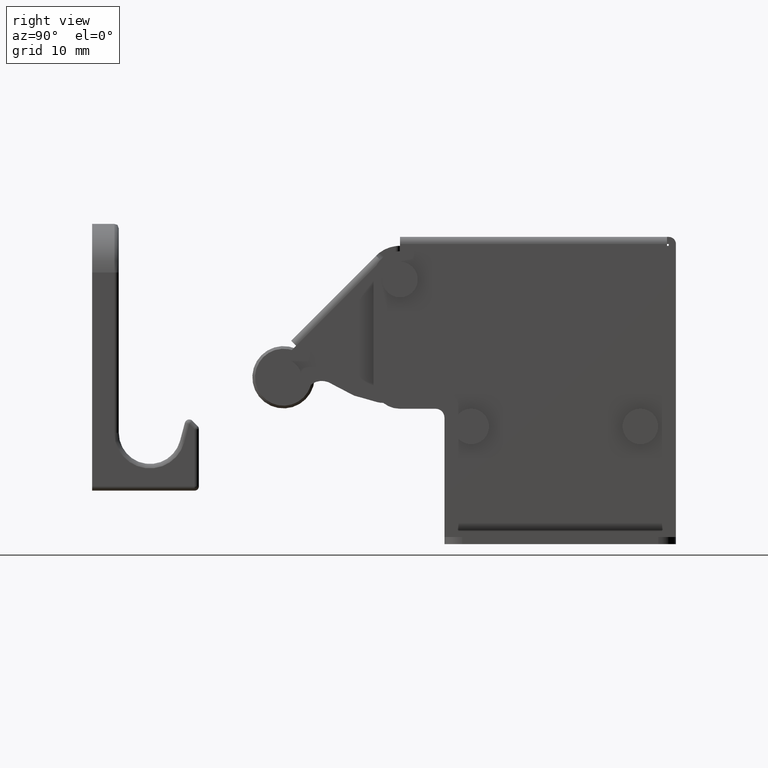
[diagram: clean part render]
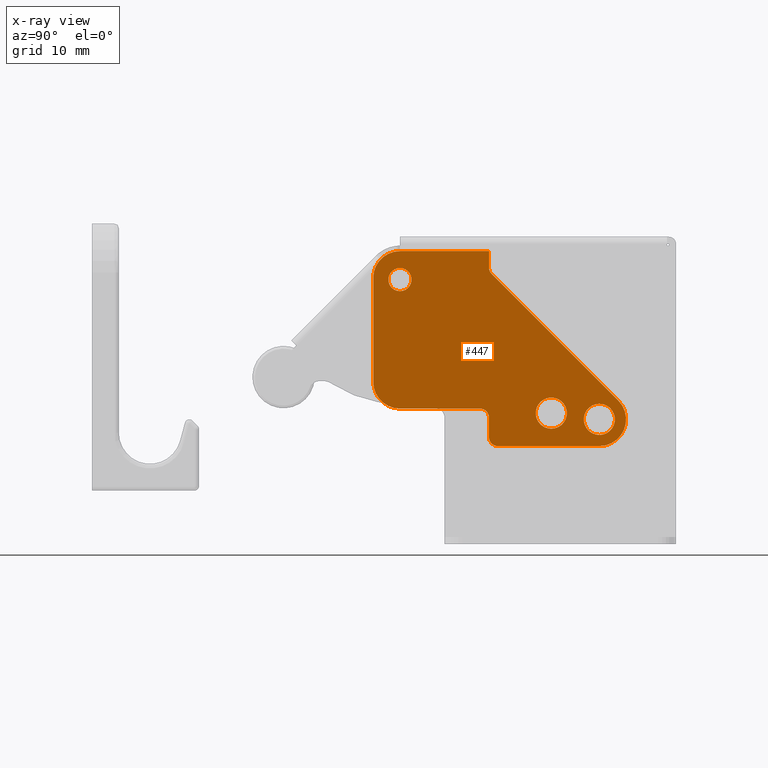
[diagram: x-ray — body ghosted, one internal face saturated and labeled with its STEP entity id]
A machine part, right view, then the same camera in x-ray: the body is ghosted and one INTERNAL B-rep face — a face not visible from any outside direction — is saturated and labeled: STEP entity #447.
In plain terms, the highlighted planar face has unit normal (-1, 0, 0).
Its self-contained STEP definition (entity closure, byte-faithful):
#447=ADVANCED_FACE('',(#2794,#2795,#2796,#2797),#2793,.F.);
#2793=PLANE('',#4721);
#2794=FACE_OUTER_BOUND('',#4722,.T.);
#2795=FACE_BOUND('',#4723,.T.);
#2796=FACE_BOUND('',#4724,.T.);
#2797=FACE_BOUND('',#4725,.T.);
#4718=CARTESIAN_POINT('',(6.65000000000E+00,-5.89387412813E+00,-2.08900000000E+01));
#4719=DIRECTION('',(-1.00000000000E+00,0.00000000000E+00,0.00000000000E+00));
#4720=DIRECTION('',(0.00000000000E+00,0.00000000000E+00,1.00000000000E+00));
#4721=AXIS2_PLACEMENT_3D('',#4718,#4719,#4720);
#4722=EDGE_LOOP('',(#6172,#6173,#6174,#6175,#6176,#6177,#6178,#6179,#6180,#6181,#6182,#6183,#6184));
#4723=EDGE_LOOP('',(#6185,#6186));
#4724=EDGE_LOOP('',(#6187,#6188));
#4725=EDGE_LOOP('',(#6189,#6190));
#6172=ORIENTED_EDGE('',*,*,#7060,.F.);
#6173=ORIENTED_EDGE('',*,*,#7061,.T.);
#6174=ORIENTED_EDGE('',*,*,#7062,.F.);
#6175=ORIENTED_EDGE('',*,*,#7063,.T.);
#6176=ORIENTED_EDGE('',*,*,#7064,.F.);
#6177=ORIENTED_EDGE('',*,*,#7065,.T.);
#6178=ORIENTED_EDGE('',*,*,#7066,.F.);
#6179=ORIENTED_EDGE('',*,*,#7067,.T.);
#6180=ORIENTED_EDGE('',*,*,#7068,.T.);
#6181=ORIENTED_EDGE('',*,*,#7069,.F.);
#6182=ORIENTED_EDGE('',*,*,#7070,.T.);
#6183=ORIENTED_EDGE('',*,*,#7071,.F.);
#6184=ORIENTED_EDGE('',*,*,#7072,.T.);
#6185=ORIENTED_EDGE('',*,*,#7073,.T.);
#6186=ORIENTED_EDGE('',*,*,#7074,.T.);
#6187=ORIENTED_EDGE('',*,*,#7075,.T.);
#6188=ORIENTED_EDGE('',*,*,#7076,.T.);
#6189=ORIENTED_EDGE('',*,*,#7077,.T.);
#6190=ORIENTED_EDGE('',*,*,#7078,.T.);
#7060=EDGE_CURVE('',#10918,#10919,#10920,.T.);
#7061=EDGE_CURVE('',#10918,#10926,#10927,.T.);
#7062=EDGE_CURVE('',#10933,#10926,#10934,.T.);
#7063=EDGE_CURVE('',#10933,#10940,#10941,.T.);
#7064=EDGE_CURVE('',#10947,#10940,#10948,.T.);
#7065=EDGE_CURVE('',#10947,#10954,#10955,.T.);
#7066=EDGE_CURVE('',#10961,#10954,#10962,.T.);
#7067=EDGE_CURVE('',#10961,#10968,#10969,.T.);
#7068=EDGE_CURVE('',#10968,#10975,#10976,.T.);
#7069=EDGE_CURVE('',#10982,#10975,#10983,.T.);
#7070=EDGE_CURVE('',#10982,#10989,#10990,.T.);
#7071=EDGE_CURVE('',#10996,#10989,#10997,.T.);
#7072=EDGE_CURVE('',#10996,#10919,#11003,.T.);
#7073=EDGE_CURVE('',#11009,#11010,#11011,.T.);
#7074=EDGE_CURVE('',#11010,#11009,#11017,.T.);
#7075=EDGE_CURVE('',#11023,#11024,#11025,.T.);
#7076=EDGE_CURVE('',#11024,#11023,#11031,.T.);
#7077=EDGE_CURVE('',#11037,#11038,#11039,.T.);
#7078=EDGE_CURVE('',#11038,#11037,#11045,.T.);
#10918=VERTEX_POINT('',#14249);
#10919=VERTEX_POINT('',#14250);
#10920=LINE('',#14251,#14252);
#10926=VERTEX_POINT('',#14254);
#10927=CIRCLE('',#14258,1.00000000000E+00);
#10933=VERTEX_POINT('',#14259);
#10934=LINE('',#14260,#14261);
#10940=VERTEX_POINT('',#14263);
#10941=CIRCLE('',#14267,3.00000000000E+00);
#10947=VERTEX_POINT('',#14268);
#10948=LINE('',#14269,#14270);
#10954=VERTEX_POINT('',#14272);
#10955=CIRCLE('',#14276,1.00000000000E+00);
#10961=VERTEX_POINT('',#14277);
#10962=LINE('',#14278,#14279);
#10968=VERTEX_POINT('',#14281);
#10969=LINE('',#14282,#14283);
#10975=VERTEX_POINT('',#14285);
#10976=CIRCLE('',#14289,3.00000000000E+00);
#10982=VERTEX_POINT('',#14290);
#10983=LINE('',#14291,#14292);
#10989=VERTEX_POINT('',#14294);
#10990=CIRCLE('',#14298,3.00000000000E+00);
#10996=VERTEX_POINT('',#14299);
#10997=LINE('',#14300,#14301);
#11003=CIRCLE('',#14306,1.00000000000E+00);
#11009=VERTEX_POINT('',#14307);
#11010=VERTEX_POINT('',#14308);
#11011=CIRCLE('',#14312,1.74999999999E+00);
#11017=CIRCLE('',#14316,1.74999999999E+00);
#11023=VERTEX_POINT('',#14317);
#11024=VERTEX_POINT('',#14318);
#11025=CIRCLE('',#14322,1.30000000000E+00);
#11031=CIRCLE('',#14326,1.30000000000E+00);
#11037=VERTEX_POINT('',#14327);
#11038=VERTEX_POINT('',#14328);
#11039=CIRCLE('',#14332,1.74999999999E+00);
#11045=CIRCLE('',#14336,1.74999999999E+00);
#14249=CARTESIAN_POINT('',(6.65000000000E+00,1.00000000000E+01,-1.77000000000E+01));
#14250=CARTESIAN_POINT('',(6.65000000000E+00,1.00000000000E+01,-1.55000000000E+01));
#14251=CARTESIAN_POINT('',(6.65000000000E+00,1.00000000000E+01,-1.77000000000E+01));
#14252=VECTOR('',#14253,2.20000000000E+00);
#14253=DIRECTION('',(0.00000000000E+00,4.52163559120E-14,1.00000000000E+00));
#14254=CARTESIAN_POINT('',(6.65000000000E+00,1.10000000000E+01,-1.87000000000E+01));
#14255=CARTESIAN_POINT('',(6.65000000000E+00,1.10000000000E+01,-1.77000000000E+01));
#14256=DIRECTION('',(1.00000000000E+00,0.00000000000E+00,-0.00000000000E+00));
#14257=DIRECTION('',(-0.00000000000E+00,-0.00000000000E+00,-1.00000000000E+00));
#14258=AXIS2_PLACEMENT_3D('',#14255,#14256,#14257);
#14259=CARTESIAN_POINT('',(6.65000000000E+00,2.24000000000E+01,-1.87000000000E+01));
#14260=CARTESIAN_POINT('',(6.65000000000E+00,2.24000000000E+01,-1.87000000000E+01));
#14261=VECTOR('',#14262,1.14000000000E+01);
#14262=DIRECTION('',(0.00000000000E+00,-1.00000000000E+00,0.00000000000E+00));
#14263=CARTESIAN_POINT('',(6.65000000000E+00,2.45213203436E+01,-1.35786796564E+01));
#14264=CARTESIAN_POINT('',(6.65000000000E+00,2.24000000000E+01,-1.57000000000E+01));
#14265=DIRECTION('',(1.00000000000E+00,0.00000000000E+00,0.00000000000E+00));
#14266=DIRECTION('',(-0.00000000000E+00,-0.00000000000E+00,1.00000000000E+00));
#14267=AXIS2_PLACEMENT_3D('',#14264,#14265,#14266);
#14268=CARTESIAN_POINT('',(6.65000000000E+00,1.02928932188E+01,6.49747468292E-01));
#14269=CARTESIAN_POINT('',(6.65000000000E+00,1.02928932188E+01,6.49747468292E-01));
#14270=VECTOR('',#14271,2.01220346110E+01);
#14271=DIRECTION('',(0.00000000000E+00,7.07106781187E-01,-7.07106781186E-01));
#14272=CARTESIAN_POINT('',(6.65000000000E+00,1.00000000000E+01,1.35685424948E+00));
#14273=CARTESIAN_POINT('',(6.65000000000E+00,1.10000000000E+01,1.35685424948E+00));
#14274=DIRECTION('',(-1.00000000000E+00,0.00000000000E+00,0.00000000000E+00));
#14275=DIRECTION('',(-0.00000000000E+00,-0.00000000000E+00,-1.00000000000E+00));
#14276=AXIS2_PLACEMENT_3D('',#14273,#14274,#14275);
#14277=CARTESIAN_POINT('',(6.65000000000E+00,1.00000000000E+01,3.20000000000E+00));
#14278=CARTESIAN_POINT('',(6.65000000000E+00,1.00000000000E+01,3.20000000000E+00));
#14279=VECTOR('',#14280,1.84314575052E+00);
#14280=DIRECTION('',(0.00000000000E+00,0.00000000000E+00,-1.00000000000E+00));
#14281=CARTESIAN_POINT('',(6.65000000000E+00,0.00000000000E+00,3.20000000000E+00));
#14282=CARTESIAN_POINT('',(6.65000000000E+00,1.00000000000E+01,3.20000000000E+00));
#14283=VECTOR('',#14284,1.00000000000E+01);
#14284=DIRECTION('',(0.00000000000E+00,-1.00000000000E+00,0.00000000000E+00));
#14285=CARTESIAN_POINT('',(6.65000000000E+00,-3.00000000000E+00,2.00000000000E-01));
#14286=CARTESIAN_POINT('',(6.65000000000E+00,0.00000000000E+00,2.00000000000E-01));
#14287=DIRECTION('',(1.00000000000E+00,0.00000000000E+00,0.00000000000E+00));
#14288=DIRECTION('',(-0.00000000000E+00,-0.00000000000E+00,1.00000000000E+00));
#14289=AXIS2_PLACEMENT_3D('',#14286,#14287,#14288);
#14290=CARTESIAN_POINT('',(6.65000000000E+00,-3.00000000000E+00,-1.15000000000E+01));
#14291=CARTESIAN_POINT('',(6.65000000000E+00,-3.00000000000E+00,-1.15000000000E+01));
#14292=VECTOR('',#14293,1.17000000000E+01);
#14293=DIRECTION('',(0.00000000000E+00,0.00000000000E+00,1.00000000000E+00));
#14294=CARTESIAN_POINT('',(6.65000000000E+00,0.00000000000E+00,-1.45000000000E+01));
#14295=CARTESIAN_POINT('',(6.65000000000E+00,0.00000000000E+00,-1.15000000000E+01));
#14296=DIRECTION('',(1.00000000000E+00,0.00000000000E+00,-0.00000000000E+00));
#14297=DIRECTION('',(-0.00000000000E+00,-0.00000000000E+00,-1.00000000000E+00));
#14298=AXIS2_PLACEMENT_3D('',#14295,#14296,#14297);
#14299=CARTESIAN_POINT('',(6.65000000000E+00,9.00000000000E+00,-1.45000000000E+01));
#14300=CARTESIAN_POINT('',(6.65000000000E+00,9.00000000000E+00,-1.45000000000E+01));
#14301=VECTOR('',#14302,9.00000000000E+00);
#14302=DIRECTION('',(0.00000000000E+00,-1.00000000000E+00,0.00000000000E+00));
#14303=CARTESIAN_POINT('',(6.65000000000E+00,9.00000000000E+00,-1.55000000000E+01));
#14304=DIRECTION('',(-1.00000000000E+00,0.00000000000E+00,0.00000000000E+00));
#14305=DIRECTION('',(-0.00000000000E+00,-0.00000000000E+00,-1.00000000000E+00));
#14306=AXIS2_PLACEMENT_3D('',#14303,#14304,#14305);
#14307=CARTESIAN_POINT('',(6.65000000000E+00,1.70000000000E+01,-1.32500000000E+01));
#14308=CARTESIAN_POINT('',(6.65000000000E+00,1.70000000000E+01,-1.67500000000E+01));
#14309=CARTESIAN_POINT('',(6.65000000000E+00,1.70000000000E+01,-1.50000000000E+01));
#14310=DIRECTION('',(-1.00000000000E+00,0.00000000000E+00,0.00000000000E+00));
#14311=DIRECTION('',(0.00000000000E+00,-1.22460635382E-16,1.00000000000E+00));
#14312=AXIS2_PLACEMENT_3D('',#14309,#14310,#14311);
#14313=CARTESIAN_POINT('',(6.65000000000E+00,1.70000000000E+01,-1.50000000000E+01));
#14314=DIRECTION('',(-1.00000000000E+00,0.00000000000E+00,0.00000000000E+00));
#14315=DIRECTION('',(0.00000000000E+00,-1.22460635382E-16,1.00000000000E+00));
#14316=AXIS2_PLACEMENT_3D('',#14313,#14314,#14315);
#14317=CARTESIAN_POINT('',(6.65000000001E+00,0.00000000000E+00,1.30000000000E+00));
#14318=CARTESIAN_POINT('',(6.65000000001E+00,7.40148683083E-17,-1.30000000000E+00));
#14319=CARTESIAN_POINT('',(6.65000000001E+00,0.00000000000E+00,1.13686837722E-13));
#14320=DIRECTION('',(-1.00000000000E+00,0.00000000000E+00,0.00000000000E+00));
#14321=DIRECTION('',(0.00000000000E+00,-1.22460635382E-16,1.00000000000E+00));
#14322=AXIS2_PLACEMENT_3D('',#14319,#14320,#14321);
#14323=CARTESIAN_POINT('',(6.65000000001E+00,0.00000000000E+00,1.13686837722E-13));
#14324=DIRECTION('',(-1.00000000000E+00,0.00000000000E+00,0.00000000000E+00));
#14325=DIRECTION('',(0.00000000000E+00,-1.22460635382E-16,1.00000000000E+00));
#14326=AXIS2_PLACEMENT_3D('',#14323,#14324,#14325);
#14327=CARTESIAN_POINT('',(6.65000000000E+00,2.24000000000E+01,-1.39500000000E+01));
#14328=CARTESIAN_POINT('',(6.65000000000E+00,2.24000000000E+01,-1.74500000000E+01));
#14329=CARTESIAN_POINT('',(6.65000000000E+00,2.24000000000E+01,-1.57000000000E+01));
#14330=DIRECTION('',(-1.00000000000E+00,0.00000000000E+00,0.00000000000E+00));
#14331=DIRECTION('',(0.00000000000E+00,-1.22460635382E-16,1.00000000000E+00));
#14332=AXIS2_PLACEMENT_3D('',#14329,#14330,#14331);
#14333=CARTESIAN_POINT('',(6.65000000000E+00,2.24000000000E+01,-1.57000000000E+01));
#14334=DIRECTION('',(-1.00000000000E+00,0.00000000000E+00,0.00000000000E+00));
#14335=DIRECTION('',(0.00000000000E+00,-1.22460635382E-16,1.00000000000E+00));
#14336=AXIS2_PLACEMENT_3D('',#14333,#14334,#14335);